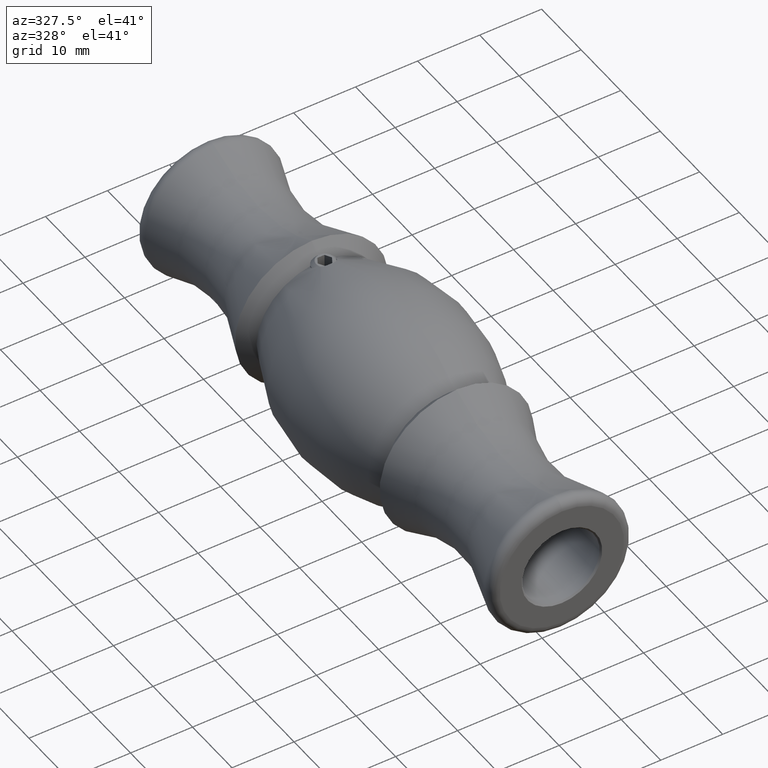
[diagram: clean part render]
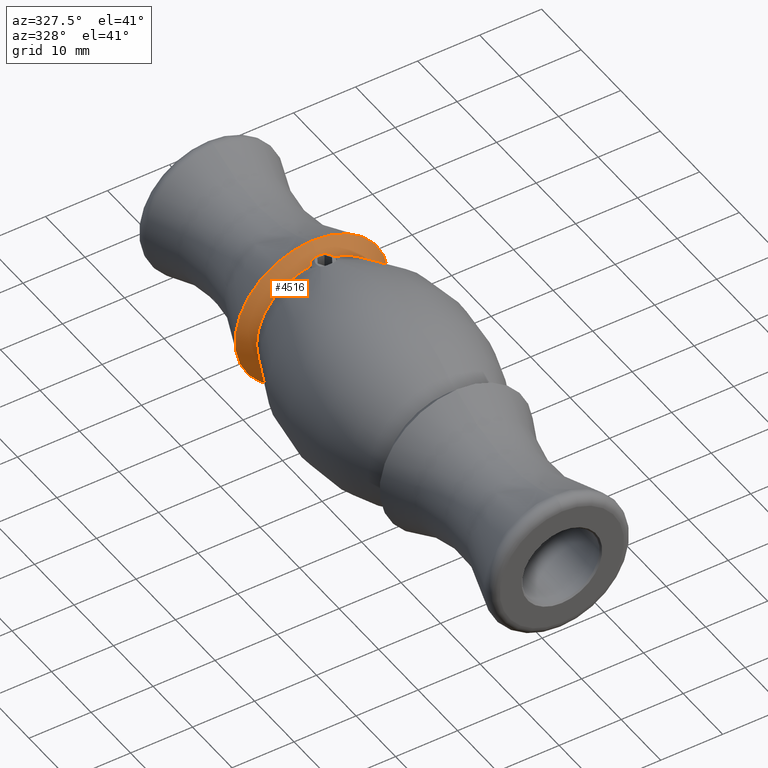
[diagram: same view with one face highlighted and labeled with its STEP entity id]
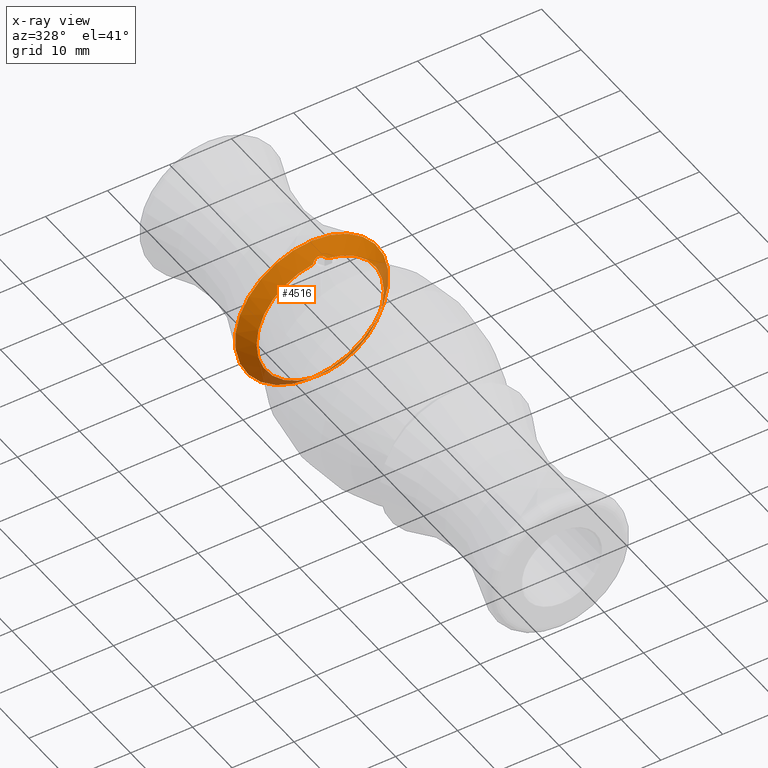
[diagram: x-ray of the same camera — body ghosted, the highlighted face saturated]
A machine part, auxiliary view. The second image highlights one B-rep face of the part: STEP entity #4516.
The next image is the same camera in x-ray: the body ghosted, the highlighted face saturated — about 12% of this face is hidden behind the body in this view.
In plain terms, the highlighted conical surface has half-angle 45 deg.
Its self-contained STEP definition (entity closure, byte-faithful):
#833 = DIRECTION ( 'NONE',  ( -0.0000000000000000000, 1.000000000000000000, -0.0000000000000000000 ) ) ;
#900 = CARTESIAN_POINT ( 'NONE',  ( 0.8599401664517243300, 16.42458667071784000, 10.47395706808667100 ) ) ;
#941 = CARTESIAN_POINT ( 'NONE',  ( -1.014123386985525100, 16.30528189136299800, 10.33867251770166700 ) ) ;
#1473 = VERTEX_POINT ( 'NONE', #5871 ) ;
#1484 = CIRCLE ( 'NONE', #3286, 12.38404353986889300 ) ;
#1941 = CARTESIAN_POINT ( 'NONE',  ( -0.4684840627142173300, 16.59635883793022500, 10.67061417935023800 ) ) ;
#2002 = AXIS2_PLACEMENT_3D ( 'NONE', #11097, #8305, #3376 ) ;
#2481 = CIRCLE ( 'NONE', #2002, 10.26272319630921900 ) ;
#2613 = EDGE_CURVE ( 'NONE', #8634, #1473, #8541, .T. ) ;
#2742 = CARTESIAN_POINT ( 'NONE',  ( -0.8515898237377285100, 16.41668692097354300, 10.46510090319105000 ) ) ;
#3059 = CARTESIAN_POINT ( 'NONE',  ( 7.426761390167614600E-015, 18.30139502529890900, 0.0000000000000000000 ) ) ;
#3286 = AXIS2_PLACEMENT_3D ( 'NONE', #3059, #7711, #10661 ) ;
#3376 = DIRECTION ( 'NONE',  ( 0.0000000000000000000, 0.0000000000000000000, 1.000000000000000000 ) ) ;
#3759 = CARTESIAN_POINT ( 'NONE',  ( -1.087070141400720700, 16.24472248857646400, 10.27026433014025700 ) ) ;
#4276 = ORIENTED_EDGE ( 'NONE', *, *, #8440, .T. ) ;
#4516 = ADVANCED_FACE ( 'NONE', ( #6471, #9603 ), #5849, .T. ) ;
#4842 = CARTESIAN_POINT ( 'NONE',  ( -1.153223198482411500, 16.18007468173926000, 10.19772345470033200 ) ) ;
#5193 = EDGE_CURVE ( 'NONE', #7557, #7557, #1484, .T. ) ;
#5349 = ORIENTED_EDGE ( 'NONE', *, *, #5193, .F. ) ;
#5810 = CARTESIAN_POINT ( 'NONE',  ( 1.153223198482411700, 16.18007468173926000, 10.19772345470033400 ) ) ;
#5849 = CONICAL_SURFACE ( 'NONE', #10882, 10.26272319630921900, 0.7853981633974545000 ) ;
#5871 = CARTESIAN_POINT ( 'NONE',  ( 1.153223198482411700, 16.18007468173926000, 10.19772345470033400 ) ) ;
#6471 = FACE_OUTER_BOUND ( 'NONE', #8261, .T. ) ;
#6503 = DIRECTION ( 'NONE',  ( 0.0000000000000000000, 0.0000000000000000000, 1.000000000000000000 ) ) ;
#7517 = CARTESIAN_POINT ( 'NONE',  ( -1.153223198482411500, 16.18007468173926000, 10.19772345470033200 ) ) ;
#7557 = VERTEX_POINT ( 'NONE', #8552 ) ;
#7711 = DIRECTION ( 'NONE',  ( -0.0000000000000000000, 1.000000000000000000, -0.0000000000000000000 ) ) ;
#8261 = EDGE_LOOP ( 'NONE', ( #5349 ) ) ;
#8305 = DIRECTION ( 'NONE',  ( -0.0000000000000000000, 1.000000000000000000, -0.0000000000000000000 ) ) ;
#8440 = EDGE_CURVE ( 'NONE', #1473, #8634, #2481, .T. ) ;
#8541 = B_SPLINE_CURVE_WITH_KNOTS ( 'NONE', 3,
 ( #7517, #3759, #941, #2742, #9585, #1941, #11512, #11355, #11433, #900, #9468, #5810 ),
 .UNSPECIFIED., .F., .F.,
 ( 4, 2, 2, 2, 2, 4 ),
 ( 8.401804637603505900E-005, 0.0004345594313098918800, 0.0007851008162437487500, 0.001486183586111460200, 0.002187266355979171300, 0.002888349125846882500 ),
 .UNSPECIFIED. ) ;
#8552 = CARTESIAN_POINT ( 'NONE',  ( 7.426761390167614600E-015, 18.30139502529890900, 12.38404353986889300 ) ) ;
#8634 = VERTEX_POINT ( 'NONE', #4842 ) ;
#9468 = CARTESIAN_POINT ( 'NONE',  ( 1.020308333500122400, 16.30996519468106600, 10.34347273810378500 ) ) ;
#9585 = CARTESIAN_POINT ( 'NONE',  ( -0.7609216280784798500, 16.46793494066876200, 10.52358689248029600 ) ) ;
#9603 = FACE_BOUND ( 'NONE', #9995, .T. ) ;
#9995 = EDGE_LOOP ( 'NONE', ( #4276, #12263 ) ) ;
#10309 = CARTESIAN_POINT ( 'NONE',  ( 7.426761390167614600E-015, 16.18007468173926000, 0.0000000000000000000 ) ) ;
#10661 = DIRECTION ( 'NONE',  ( 0.0000000000000000000, 0.0000000000000000000, 1.000000000000000000 ) ) ;
#10882 = AXIS2_PLACEMENT_3D ( 'NONE', #10309, #833, #6503 ) ;
#11097 = CARTESIAN_POINT ( 'NONE',  ( 7.426761390167614600E-015, 16.18007468173926000, 0.0000000000000000000 ) ) ;
#11355 = CARTESIAN_POINT ( 'NONE',  ( 0.2355177653307337100, 16.65009782534174900, 10.73276137923814500 ) ) ;
#11433 = CARTESIAN_POINT ( 'NONE',  ( 0.4651986455772128000, 16.59766532553506800, 10.67211208985091500 ) ) ;
#11512 = CARTESIAN_POINT ( 'NONE',  ( -0.2368864742197080200, 16.64990189081523700, 10.73253532242172200 ) ) ;
#12263 = ORIENTED_EDGE ( 'NONE', *, *, #2613, .T. ) ;